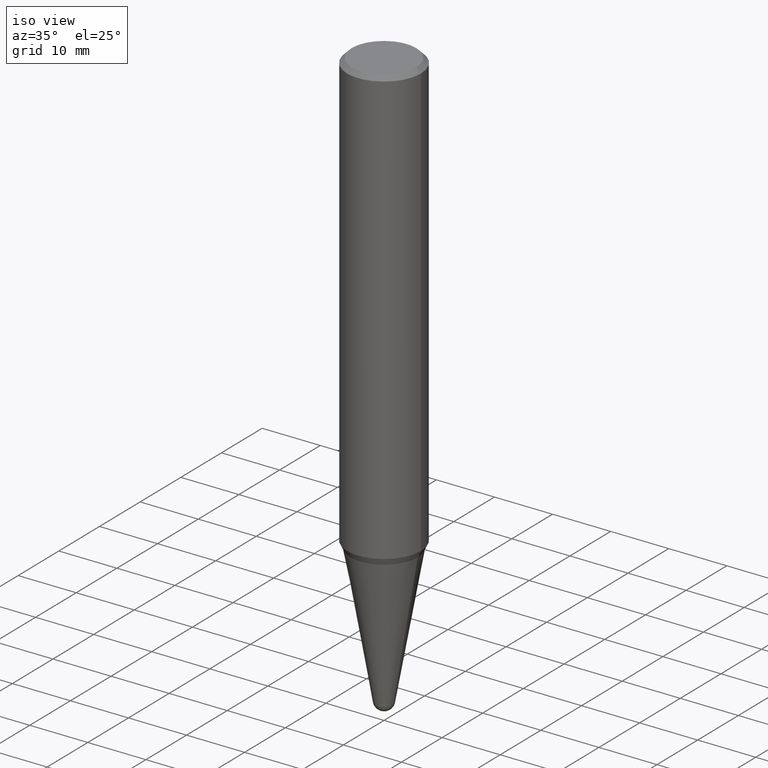
[diagram: clean part render]
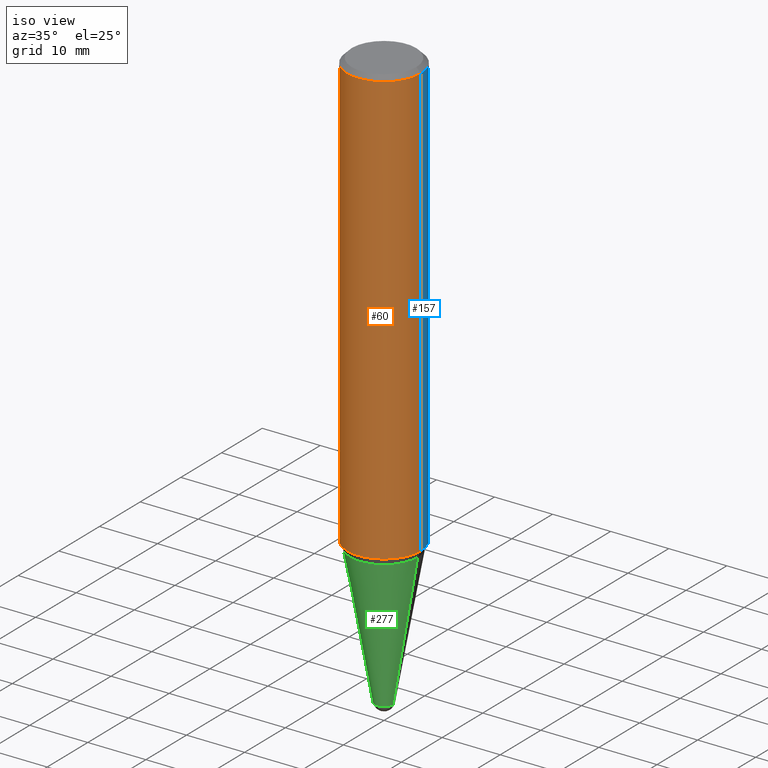
[diagram: same view with three faces highlighted in distinct colors, each labeled with its STEP entity id]
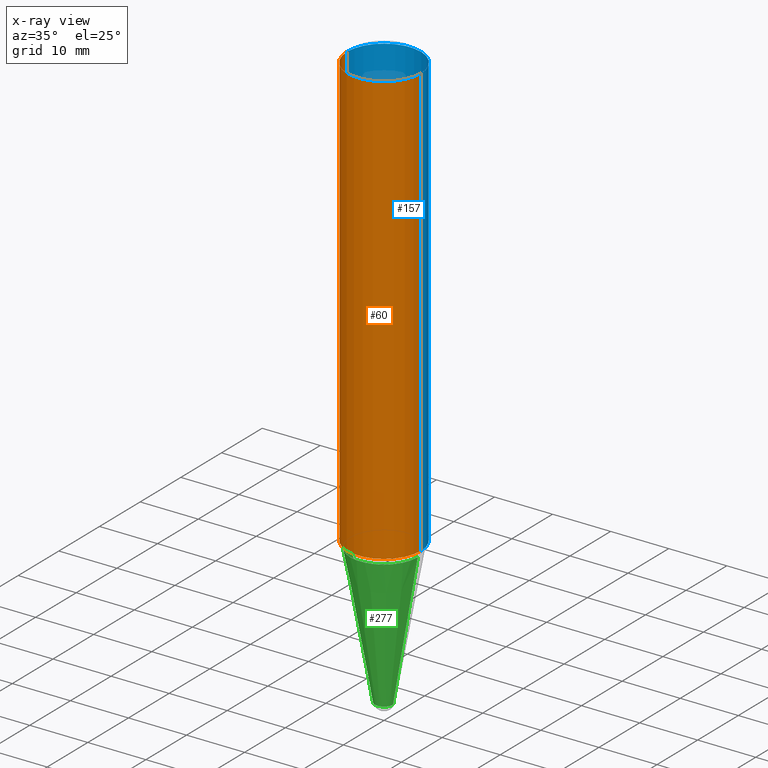
[diagram: x-ray of the same camera — body ghosted, the three highlighted faces saturated]
A machine part, iso view with three faces highlighted in distinct colors.
The next image is the same camera in x-ray (body ghosted, the three faces saturated) — at least one of them is partly hidden behind the body in this view.
Their STEP definitions:

[orange] entity #60 — the highlighted cylindrical surface (partial cylindrical patch) has radius 6.35 mm, axis along (-0, 0, 1).
#9 = VERTEX_POINT ( 'NONE', #114 ) ;
#17 = CIRCLE ( 'NONE', #64, 0.2500000000000000000 ) ;
#22 = CARTESIAN_POINT ( 'NONE',  ( -1.450455682483482035E-44, 2.070866303999251778E-30, 5.931196827434296760E-16 ) ) ;
#28 = AXIS2_PLACEMENT_3D ( 'NONE', #22, #447, #371 ) ;
#37 = ORIENTED_EDGE ( 'NONE', *, *, #162, .T. ) ;
#60 = ADVANCED_FACE ( 'NONE', ( #116 ), #262, .T. ) ;
#64 = AXIS2_PLACEMENT_3D ( 'NONE', #297, #288, #256 ) ;
#74 = EDGE_CURVE ( 'NONE', #82, #152, #204, .T. ) ;
#80 = DIRECTION ( 'NONE',  ( -2.445468806185136877E-29, 3.491481338843145188E-15, 1.000000000000000000 ) ) ;
#82 = VERTEX_POINT ( 'NONE', #307 ) ;
#103 = CARTESIAN_POINT ( 'NONE',  ( -0.2500000000000000000, -3.438813221624728231E-15, -0.03125000000000005551 ) ) ;
#104 = ORIENTED_EDGE ( 'NONE', *, *, #302, .T. ) ;
#114 = CARTESIAN_POINT ( 'NONE',  ( 0.2500000000000003886, -1.206697199963268443E-14, -2.956118142573522345 ) ) ;
#116 = FACE_OUTER_BOUND ( 'NONE', #423, .T. ) ;
#136 = CARTESIAN_POINT ( 'NONE',  ( 0.2500000000000000000, -1.854849461260415384E-15, -0.03125000000000005551 ) ) ;
#152 = VERTEX_POINT ( 'NONE', #103 ) ;
#162 = EDGE_CURVE ( 'NONE', #82, #9, #216, .T. ) ;
#188 = VERTEX_POINT ( 'NONE', #136 ) ;
#192 = ORIENTED_EDGE ( 'NONE', *, *, #74, .F. ) ;
#201 = CARTESIAN_POINT ( 'NONE',  ( 7.229094705061496755E-29, -1.032123133021111460E-14, -2.956118142573522345 ) ) ;
#204 = LINE ( 'NONE', #409, #403 ) ;
#216 = CIRCLE ( 'NONE', #246, 0.2500000000000003886 ) ;
#246 = AXIS2_PLACEMENT_3D ( 'NONE', #201, #444, #343 ) ;
#253 = ORIENTED_EDGE ( 'NONE', *, *, #387, .F. ) ;
#256 = DIRECTION ( 'NONE',  ( 1.000000000000000000, -6.982962677686266711E-15, 0.000000000000000000 ) ) ;
#262 = CYLINDRICAL_SURFACE ( 'NONE', #28, 0.2500000000000002220 ) ;
#288 = DIRECTION ( 'NONE',  ( -2.445468806185136597E-29, 3.491481338843145583E-15, 1.000000000000000000 ) ) ;
#297 = CARTESIAN_POINT ( 'NONE',  ( 7.642090019328565002E-31, -1.091087918388484967E-16, -0.03125000000000005551 ) ) ;
#302 = EDGE_CURVE ( 'NONE', #9, #188, #385, .T. ) ;
#307 = CARTESIAN_POINT ( 'NONE',  ( -0.2500000000000003886, -8.544874490810860981E-15, -2.956118142573522345 ) ) ;
#326 = VECTOR ( 'NONE', #80, 39.37007874015748143 ) ;
#337 = DIRECTION ( 'NONE',  ( -2.445468806185136877E-29, 3.491481338843145188E-15, 1.000000000000000000 ) ) ;
#343 = DIRECTION ( 'NONE',  ( 1.000000000000000000, -6.982962677686267499E-15, 0.000000000000000000 ) ) ;
#361 = CARTESIAN_POINT ( 'NONE',  ( 0.2500000000000002220, -1.745740669421565889E-15, 5.931196827434418047E-16 ) ) ;
#371 = DIRECTION ( 'NONE',  ( 1.000000000000000000, -6.982962677686266711E-15, 4.852736867747361723E-29 ) ) ;
#385 = LINE ( 'NONE', #361, #326 ) ;
#387 = EDGE_CURVE ( 'NONE', #152, #188, #17, .T. ) ;
#403 = VECTOR ( 'NONE', #337, 39.37007874015748143 ) ;
#409 = CARTESIAN_POINT ( 'NONE',  ( -0.2500000000000002220, 1.776356839400254015E-15, 5.931196827434174486E-16 ) ) ;
#423 = EDGE_LOOP ( 'NONE', ( #192, #37, #104, #253 ) ) ;
#444 = DIRECTION ( 'NONE',  ( -2.445468806185136597E-29, 3.491481338843145583E-15, 1.000000000000000000 ) ) ;
#447 = DIRECTION ( 'NONE',  ( -2.445468806185136597E-29, 3.491481338843145583E-15, 1.000000000000000000 ) ) ;

[blue] entity #157 — the highlighted cylindrical surface (partial cylindrical patch) has radius 6.35 mm, axis along (-0, 0, 1).
#9 = VERTEX_POINT ( 'NONE', #114 ) ;
#34 = DIRECTION ( 'NONE',  ( 1.000000000000000000, -6.982962677686267499E-15, 0.000000000000000000 ) ) ;
#53 = FACE_OUTER_BOUND ( 'NONE', #438, .T. ) ;
#57 = CARTESIAN_POINT ( 'NONE',  ( -1.450455682483482035E-44, 2.070866303999251778E-30, 5.931196827434296760E-16 ) ) ;
#68 = ORIENTED_EDGE ( 'NONE', *, *, #74, .T. ) ;
#74 = EDGE_CURVE ( 'NONE', #82, #152, #204, .T. ) ;
#80 = DIRECTION ( 'NONE',  ( -2.445468806185136877E-29, 3.491481338843145188E-15, 1.000000000000000000 ) ) ;
#82 = VERTEX_POINT ( 'NONE', #307 ) ;
#92 = CARTESIAN_POINT ( 'NONE',  ( 7.642090019328565002E-31, -1.091087918388484967E-16, -0.03125000000000005551 ) ) ;
#103 = CARTESIAN_POINT ( 'NONE',  ( -0.2500000000000000000, -3.438813221624728231E-15, -0.03125000000000005551 ) ) ;
#107 = ORIENTED_EDGE ( 'NONE', *, *, #309, .T. ) ;
#114 = CARTESIAN_POINT ( 'NONE',  ( 0.2500000000000003886, -1.206697199963268443E-14, -2.956118142573522345 ) ) ;
#115 = DIRECTION ( 'NONE',  ( -2.445468806185136597E-29, 3.491481338843145583E-15, 1.000000000000000000 ) ) ;
#118 = AXIS2_PLACEMENT_3D ( 'NONE', #57, #243, #339 ) ;
#130 = DIRECTION ( 'NONE',  ( -2.445468806185136597E-29, 3.491481338843145583E-15, 1.000000000000000000 ) ) ;
#132 = EDGE_CURVE ( 'NONE', #188, #152, #344, .T. ) ;
#133 = AXIS2_PLACEMENT_3D ( 'NONE', #92, #130, #377 ) ;
#136 = CARTESIAN_POINT ( 'NONE',  ( 0.2500000000000000000, -1.854849461260415384E-15, -0.03125000000000005551 ) ) ;
#152 = VERTEX_POINT ( 'NONE', #103 ) ;
#157 = ADVANCED_FACE ( 'NONE', ( #53 ), #308, .T. ) ;
#183 = CIRCLE ( 'NONE', #280, 0.2500000000000003886 ) ;
#188 = VERTEX_POINT ( 'NONE', #136 ) ;
#204 = LINE ( 'NONE', #409, #403 ) ;
#221 = CARTESIAN_POINT ( 'NONE',  ( 7.229094705061496755E-29, -1.032123133021111460E-14, -2.956118142573522345 ) ) ;
#243 = DIRECTION ( 'NONE',  ( -2.445468806185136597E-29, 3.491481338843145583E-15, 1.000000000000000000 ) ) ;
#272 = ORIENTED_EDGE ( 'NONE', *, *, #302, .F. ) ;
#280 = AXIS2_PLACEMENT_3D ( 'NONE', #221, #115, #34 ) ;
#302 = EDGE_CURVE ( 'NONE', #9, #188, #385, .T. ) ;
#307 = CARTESIAN_POINT ( 'NONE',  ( -0.2500000000000003886, -8.544874490810860981E-15, -2.956118142573522345 ) ) ;
#308 = CYLINDRICAL_SURFACE ( 'NONE', #118, 0.2500000000000002220 ) ;
#309 = EDGE_CURVE ( 'NONE', #9, #82, #183, .T. ) ;
#326 = VECTOR ( 'NONE', #80, 39.37007874015748143 ) ;
#337 = DIRECTION ( 'NONE',  ( -2.445468806185136877E-29, 3.491481338843145188E-15, 1.000000000000000000 ) ) ;
#339 = DIRECTION ( 'NONE',  ( 1.000000000000000000, -6.982962677686266711E-15, 4.852736867747361723E-29 ) ) ;
#344 = CIRCLE ( 'NONE', #133, 0.2500000000000000000 ) ;
#361 = CARTESIAN_POINT ( 'NONE',  ( 0.2500000000000002220, -1.745740669421565889E-15, 5.931196827434418047E-16 ) ) ;
#377 = DIRECTION ( 'NONE',  ( 1.000000000000000000, -6.982962677686266711E-15, 0.000000000000000000 ) ) ;
#385 = LINE ( 'NONE', #361, #326 ) ;
#403 = VECTOR ( 'NONE', #337, 39.37007874015748143 ) ;
#409 = CARTESIAN_POINT ( 'NONE',  ( -0.2500000000000002220, 1.776356839400254015E-15, 5.931196827434174486E-16 ) ) ;
#438 = EDGE_LOOP ( 'NONE', ( #107, #68, #458, #272 ) ) ;
#458 = ORIENTED_EDGE ( 'NONE', *, *, #132, .F. ) ;

[green] entity #277 — the highlighted conical surface has half-angle 10 deg.
#7 = ORIENTED_EDGE ( 'NONE', *, *, #165, .F. ) ;
#31 = DIRECTION ( 'NONE',  ( 1.000000000000000000, -6.982962677686276177E-15, 0.000000000000000000 ) ) ;
#43 = VERTEX_POINT ( 'NONE', #429 ) ;
#65 = EDGE_CURVE ( 'NONE', #320, #43, #202, .T. ) ;
#69 = AXIS2_PLACEMENT_3D ( 'NONE', #310, #333, #405 ) ;
#70 = CARTESIAN_POINT ( 'NONE',  ( -0.06155048456326350781, -1.109859436613565477E-14, -3.948353011104182908 ) ) ;
#84 = DIRECTION ( 'NONE',  ( 1.000000000000000000, -6.982962677686276177E-15, 0.000000000000000000 ) ) ;
#106 = DIRECTION ( 'NONE',  ( 1.000000000000000000, -6.982962677686276177E-15, 0.000000000000000000 ) ) ;
#108 = AXIS2_PLACEMENT_3D ( 'NONE', #249, #252, #31 ) ;
#119 = DIRECTION ( 'NONE',  ( 0.1736481776669305255, 2.225859148293764464E-15, 0.9848077530122080203 ) ) ;
#154 = CARTESIAN_POINT ( 'NONE',  ( 0.2287707076570457132, -1.207194132984646247E-14, -2.999999999999999556 ) ) ;
#161 = CARTESIAN_POINT ( 'NONE',  ( 9.655574124462436223E-29, -1.378560085743539787E-14, -3.948353011104182908 ) ) ;
#164 = EDGE_LOOP ( 'NONE', ( #440, #364, #261, #229, #7 ) ) ;
#165 = EDGE_CURVE ( 'NONE', #43, #265, #182, .T. ) ;
#182 = CIRCLE ( 'NONE', #69, 0.2287707076570457132 ) ;
#184 = DIRECTION ( 'NONE',  ( -2.445468806185136597E-29, 3.491481338843145583E-15, 1.000000000000000000 ) ) ;
#195 = VERTEX_POINT ( 'NONE', #237 ) ;
#197 = AXIS2_PLACEMENT_3D ( 'NONE', #323, #184, #106 ) ;
#202 = LINE ( 'NONE', #369, #278 ) ;
#214 = FACE_OUTER_BOUND ( 'NONE', #164, .T. ) ;
#229 = ORIENTED_EDGE ( 'NONE', *, *, #436, .T. ) ;
#233 = DIRECTION ( 'NONE',  ( -2.445468806185136597E-29, 3.491481338843145583E-15, 1.000000000000000000 ) ) ;
#237 = CARTESIAN_POINT ( 'NONE',  ( 0.06155048456326350781, -1.314367346189031684E-14, -3.948353011104182908 ) ) ;
#249 = CARTESIAN_POINT ( 'NONE',  ( 9.655574124462436223E-29, -1.378560085743539787E-14, -3.948353011104182908 ) ) ;
#252 = DIRECTION ( 'NONE',  ( -2.445468806185136597E-29, 3.491481338843145583E-15, 1.000000000000000000 ) ) ;
#255 = VECTOR ( 'NONE', #119, 39.37007874015748143 ) ;
#261 = ORIENTED_EDGE ( 'NONE', *, *, #410, .T. ) ;
#265 = VERTEX_POINT ( 'NONE', #154 ) ;
#276 = DIRECTION ( 'NONE',  ( -0.1736481776669305255, 4.672282404182341556E-15, 0.9848077530122080203 ) ) ;
#277 = ADVANCED_FACE ( 'NONE', ( #214 ), #313, .T. ) ;
#278 = VECTOR ( 'NONE', #276, 39.37007874015748143 ) ;
#287 = EDGE_CURVE ( 'NONE', #320, #322, #441, .T. ) ;
#310 = CARTESIAN_POINT ( 'NONE',  ( 7.336406418555408669E-29, -1.047444401652943478E-14, -2.999999999999999556 ) ) ;
#313 = CONICAL_SURFACE ( 'NONE', #108, 0.06155048456326350781, 0.1745329251994331421 ) ;
#320 = VERTEX_POINT ( 'NONE', #70 ) ;
#322 = VERTEX_POINT ( 'NONE', #395 ) ;
#323 = CARTESIAN_POINT ( 'NONE',  ( 9.655574124462436223E-29, -1.378560085743539787E-14, -3.948353011104182908 ) ) ;
#333 = DIRECTION ( 'NONE',  ( -2.445468806185136597E-29, 3.491481338843145583E-15, 1.000000000000000000 ) ) ;
#364 = ORIENTED_EDGE ( 'NONE', *, *, #287, .T. ) ;
#368 = CARTESIAN_POINT ( 'NONE',  ( 0.06155048456326350781, -1.421540559393417278E-14, -3.948353011104182908 ) ) ;
#369 = CARTESIAN_POINT ( 'NONE',  ( -0.06155048456326350781, -1.334825836054598876E-14, -3.948353011104182908 ) ) ;
#395 = CARTESIAN_POINT ( 'NONE',  ( -4.373424968893110875E-16, -0.06155048456327685824, -3.948353011104182908 ) ) ;
#405 = DIRECTION ( 'NONE',  ( 1.000000000000000000, -6.982962677686263555E-15, 0.000000000000000000 ) ) ;
#410 = EDGE_CURVE ( 'NONE', #322, #195, #433, .T. ) ;
#413 = AXIS2_PLACEMENT_3D ( 'NONE', #161, #233, #84 ) ;
#429 = CARTESIAN_POINT ( 'NONE',  ( -0.2287707076570457132, -8.848930371725322354E-15, -2.999999999999999556 ) ) ;
#433 = CIRCLE ( 'NONE', #413, 0.06155048456326350781 ) ;
#436 = EDGE_CURVE ( 'NONE', #195, #265, #439, .T. ) ;
#439 = LINE ( 'NONE', #368, #255 ) ;
#440 = ORIENTED_EDGE ( 'NONE', *, *, #65, .F. ) ;
#441 = CIRCLE ( 'NONE', #197, 0.06155048456326350781 ) ;